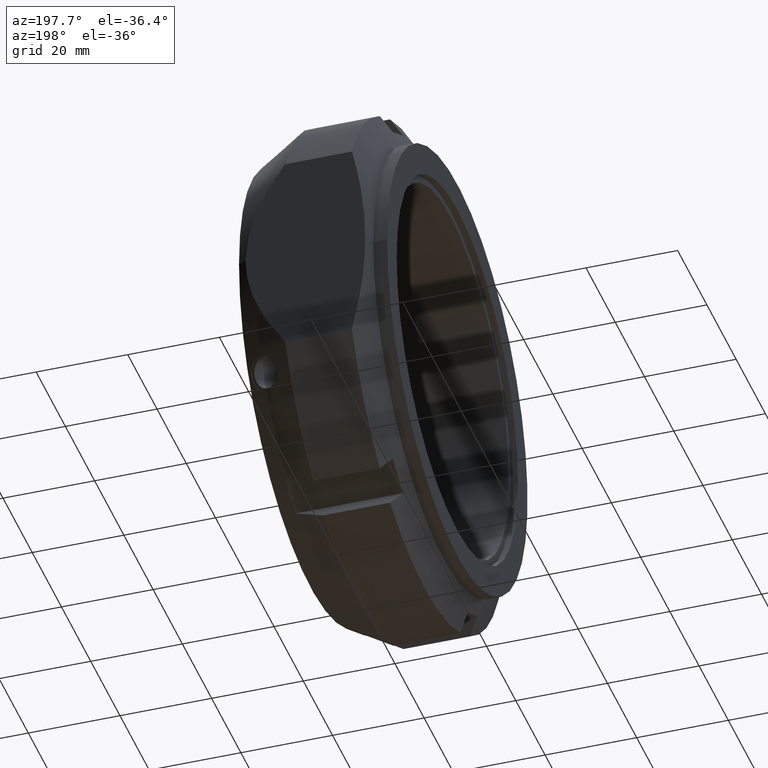
[diagram: clean part render]
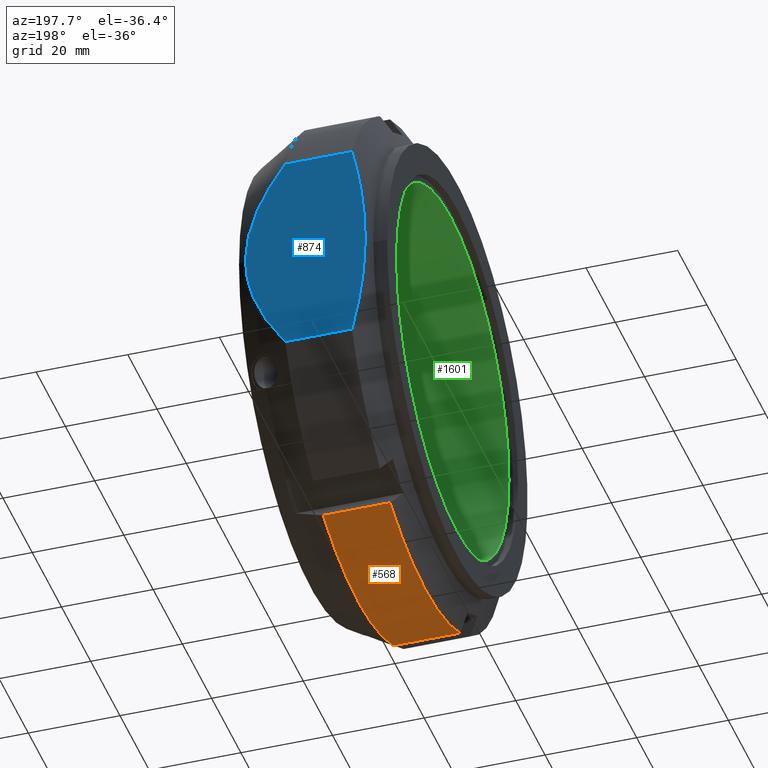
[diagram: same view with three faces highlighted in distinct colors, each labeled with its STEP entity id]
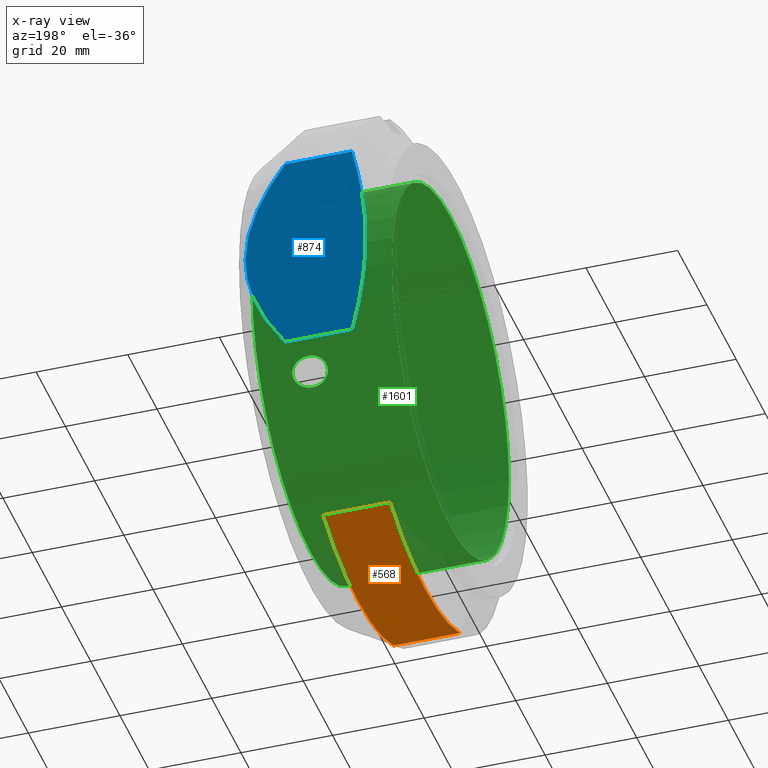
[diagram: x-ray of the same camera — body ghosted, the three highlighted faces saturated]
A machine part, auxiliary view with three faces highlighted in distinct colors.
The next image is the same camera in x-ray (body ghosted, the three faces saturated) — at least one of them is partly hidden behind the body in this view.
Their STEP definitions:

[orange] entity #568 — the highlighted cylindrical surface (partial cylindrical patch) has radius 55 mm, axis along (1, 0, 0).
#127=CARTESIAN_POINT('',(7.041451884327358,23.963074688667184,-49.505262866339351));
#128=VERTEX_POINT('',#127);
#143=CARTESIAN_POINT('',(21.6076951545867,23.963074688667184,-49.505262866339351));
#144=VERTEX_POINT('',#143);
#158=CARTESIAN_POINT('',(7.041451884327358,23.963074688667184,-49.505262866339351));
#159=DIRECTION('',(1.0,0.0,0.0));
#160=VECTOR('',#159,14.566243270259342);
#161=LINE('',#158,#160);
#162=EDGE_CURVE('',#128,#144,#161,.T.);
#271=CARTESIAN_POINT('',(7.041451884327348,-23.963074688667266,-49.505262866339301));
#272=VERTEX_POINT('',#271);
#288=CARTESIAN_POINT('',(21.607695154586732,-23.963074688667263,-49.505262866339301));
#289=VERTEX_POINT('',#288);
#290=CARTESIAN_POINT('',(21.607695154586732,-23.96307468866727,-49.505262866339308));
#291=DIRECTION('',(-1.0,0.0,0.0));
#292=VECTOR('',#291,14.566243270259385);
#293=LINE('',#290,#292);
#294=EDGE_CURVE('',#289,#272,#293,.T.);
#375=CARTESIAN_POINT('',(7.041451884327357,0.0,0.0));
#376=DIRECTION('',(1.0,0.0,0.0));
#377=DIRECTION('',(0.0,1.0,0.0));
#378=AXIS2_PLACEMENT_3D('',#375,#376,#377);
#379=CIRCLE('',#378,55.0);
#380=EDGE_CURVE('',#272,#128,#379,.T.);
#551=CARTESIAN_POINT('',(14.324573519457031,0.0,0.0));
#552=DIRECTION('',(1.0,0.0,0.0));
#553=DIRECTION('',(0.0,1.0,0.0));
#554=AXIS2_PLACEMENT_3D('',#551,#552,#553);
#555=CYLINDRICAL_SURFACE('',#554,55.0);
#556=ORIENTED_EDGE('',*,*,#162,.T.);
#557=CARTESIAN_POINT('',(21.607695154586708,0.0,0.0));
#558=DIRECTION('',(1.0,0.0,0.0));
#559=DIRECTION('',(0.0,1.0,0.0));
#560=AXIS2_PLACEMENT_3D('',#557,#558,#559);
#561=CIRCLE('',#560,55.0);
#562=EDGE_CURVE('',#289,#144,#561,.T.);
#563=ORIENTED_EDGE('',*,*,#562,.F.);
#564=ORIENTED_EDGE('',*,*,#294,.T.);
#565=ORIENTED_EDGE('',*,*,#380,.T.);
#566=EDGE_LOOP('',(#556,#563,#564,#565));
#567=FACE_OUTER_BOUND('',#566,.T.);
#568=ADVANCED_FACE('',(#567),#555,.T.);

[blue] entity #874 — the highlighted planar face has unit normal (0, -1, 0).
#517=CARTESIAN_POINT('',(7.041451884327357,50.000000000000043,22.912878474779106));
#518=VERTEX_POINT('',#517);
#526=CARTESIAN_POINT('',(7.041451884327357,50.000000000000028,-22.912878474779141));
#527=VERTEX_POINT('',#526);
#528=CARTESIAN_POINT('',(7.041451884327358,50.000000000000043,22.912878474779113));
#529=CARTESIAN_POINT('',(1.530381132971882,50.000000000000036,3.541307E-015));
#530=CARTESIAN_POINT('',(7.041451884327358,50.000000000000028,-22.912878474779149));
#538=(BOUNDED_CURVE()B_SPLINE_CURVE(2,(#528,#529,#530),.UNSPECIFIED.,.F.,.U.)B_SPLINE_CURVE_WITH_KNOTS((3,3),(0.0,4.618802153516993),.UNSPECIFIED.)CURVE()GEOMETRIC_REPRESENTATION_ITEM()RATIONAL_B_SPLINE_CURVE((1.0,1.099999999999999,1.0))REPRESENTATION_ITEM(''));
#539=EDGE_CURVE('',#518,#527,#538,.T.);
#800=CARTESIAN_POINT('',(21.607695154586708,50.000000000000043,22.912878474779106));
#801=VERTEX_POINT('',#800);
#809=CARTESIAN_POINT('',(21.607695154586708,50.000000000000043,22.912878474779106));
#810=DIRECTION('',(-1.0,0.0,0.0));
#811=VECTOR('',#810,14.566243270259351);
#812=LINE('',#809,#811);
#813=EDGE_CURVE('',#801,#518,#812,.T.);
#844=CARTESIAN_POINT('',(0.0,50.000000000000078,100.00000000000001));
#845=DIRECTION('',(0.0,-1.0,0.0));
#846=DIRECTION('',(0.0,0.0,-1.0));
#847=AXIS2_PLACEMENT_3D('',#844,#845,#846);
#848=PLANE('',#847);
#849=ORIENTED_EDGE('',*,*,#539,.F.);
#850=ORIENTED_EDGE('',*,*,#813,.F.);
#851=CARTESIAN_POINT('',(21.607695154586708,50.000000000000028,-22.912878474779141));
#852=VERTEX_POINT('',#851);
#853=CARTESIAN_POINT('',(21.607695154586708,50.000000000000028,-22.912878474779138));
#854=CARTESIAN_POINT('',(38.140907408653185,50.000000000000036,-9.779716E-015));
#855=CARTESIAN_POINT('',(21.607695154586711,50.000000000000043,22.912878474779102));
#863=(BOUNDED_CURVE()B_SPLINE_CURVE(2,(#853,#854,#855),.UNSPECIFIED.,.F.,.U.)B_SPLINE_CURVE_WITH_KNOTS((3,3),(0.0,4.898979485566338),.UNSPECIFIED.)CURVE()GEOMETRIC_REPRESENTATION_ITEM()RATIONAL_B_SPLINE_CURVE((1.0,1.099999999999999,1.0))REPRESENTATION_ITEM(''));
#864=EDGE_CURVE('',#852,#801,#863,.T.);
#865=ORIENTED_EDGE('',*,*,#864,.F.);
#866=CARTESIAN_POINT('',(7.041451884327357,50.000000000000028,-22.912878474779141));
#867=DIRECTION('',(1.0,0.0,0.0));
#868=VECTOR('',#867,14.566243270259351);
#869=LINE('',#866,#868);
#870=EDGE_CURVE('',#527,#852,#869,.T.);
#871=ORIENTED_EDGE('',*,*,#870,.F.);
#872=EDGE_LOOP('',(#849,#850,#865,#871));
#873=FACE_OUTER_BOUND('',#872,.T.);
#874=ADVANCED_FACE('',(#873),#848,.F.);

[green] entity #1601 — the highlighted cylindrical surface (bore or boss wall) has radius 40 mm, axis along (1, 0, 0).
#1191=CARTESIAN_POINT('',(21.014157582887997,36.182986374331946,-17.052609684001695));
#1192=VERTEX_POINT('',#1191);
#1193=CARTESIAN_POINT('',(21.014157582887997,36.182986374331946,-17.052609684001695));
#1194=CARTESIAN_POINT('',(21.508219076813049,36.182986374331946,-17.052609684001695));
#1195=CARTESIAN_POINT('',(22.038930494380327,36.146056527267469,-17.13170344394506));
#1196=CARTESIAN_POINT('',(23.029136020147934,35.989768185182193,-17.457641635930877));
#1197=CARTESIAN_POINT('',(23.488664435652517,35.870156446173326,-17.70426032139056));
#1198=CARTESIAN_POINT('',(24.165679366390016,35.596614698758792,-18.24714235285964));
#1199=CARTESIAN_POINT('',(24.448231932047726,35.434557554124801,-18.562010051009189));
#1200=CARTESIAN_POINT('',(24.831671122661902,35.061008473536234,-19.25829098480602));
#1201=CARTESIAN_POINT('',(24.931658006888494,34.84892913832946,-19.639884143045879));
#1202=CARTESIAN_POINT('',(24.931658006888494,34.43310316442561,-20.360115856954163));
#1203=CARTESIAN_POINT('',(24.831671122661902,34.208673463082938,-20.734578527980872));
#1204=CARTESIAN_POINT('',(24.448231932047726,33.792451026538409,-21.406221988229301));
#1205=CARTESIAN_POINT('',(24.165679366390012,33.600796173426772,-21.704001441421887));
#1206=CARTESIAN_POINT('',(23.488664435652503,33.267417416623715,-22.212336559412996));
#1207=CARTESIAN_POINT('',(23.029136020147934,33.113645239472127,-22.439232706715355));
#1208=CARTESIAN_POINT('',(22.038930494380324,32.909518656191487,-22.737551477269466));
#1209=CARTESIAN_POINT('',(21.508219076813042,32.859486374331944,-22.809080542956863));
#1210=CARTESIAN_POINT('',(20.536085212414996,32.859486374331944,-22.809080542956863));
#1211=CARTESIAN_POINT('',(20.021651853894923,32.906589782701431,-22.741756250594779));
#1212=CARTESIAN_POINT('',(19.066773610044837,33.105924909924141,-22.450587171227149));
#1213=CARTESIAN_POINT('',(18.626468635992694,33.258098489086748,-22.226243980758209));
#1214=CARTESIAN_POINT('',(17.976196794589001,33.593042588934409,-21.71606905717233));
#1215=CARTESIAN_POINT('',(17.70725324397478,33.788282679599313,-21.412878747771202));
#1216=CARTESIAN_POINT('',(17.347259767394473,34.208991738703631,-20.734133859079172));
#1217=CARTESIAN_POINT('',(17.256363528281604,34.434148908055462,-20.35830457585557));
#1218=CARTESIAN_POINT('',(17.256363528281604,34.85501021066159,-19.62935141680213));
#1219=CARTESIAN_POINT('',(17.35355418968344,35.074379900662677,-19.234229680531435));
#1220=CARTESIAN_POINT('',(17.736135032452079,35.46083826508471,-18.512068128795747));
#1221=CARTESIAN_POINT('',(18.021393592979059,35.628361798292367,-18.185191375816228));
#1222=CARTESIAN_POINT('',(18.686341721709692,35.894781803296723,-17.653900424238984));
#1223=CARTESIAN_POINT('',(19.118435082359674,36.006365904436294,-17.423242214546192));
#1224=CARTESIAN_POINT('',(20.050481047703997,36.150248153207372,-17.12271337704599));
#1225=CARTESIAN_POINT('',(20.550290495608905,36.182986374331946,-17.052609684001695));
#1226=CARTESIAN_POINT('',(21.014157582887997,36.182986374331946,-17.052609684001695));
#1227=B_SPLINE_CURVE_WITH_KNOTS('',3,(#1193,#1194,#1195,#1196,#1197,#1198,#1199,#1200,#1201,#1202,#1203,#1204,#1205,#1206,#1207,#1208,#1209,#1210,#1211,#1212,#1213,#1214,#1215,#1216,#1217,#1218,#1219,#1220,#1221,#1222,#1223,#1224,#1225,#1226),.UNSPECIFIED.,.T.,.U.,(4,2,2,2,2,2,2,2,2,2,2,2,2,2,2,2,4),(0.0,0.148218448177516,0.296436896355031,0.421184688526187,0.545932480697343,0.670680272868499,0.795428065039655,0.943646513217171,1.091864961394687,1.235286672536587,1.378708383678487,1.502828729671732,1.626949075664977,1.755345511235409,1.88374194680584,2.022902072989568,2.162062199173295),.UNSPECIFIED.);
#1228=EDGE_CURVE('',#1192,#1192,#1227,.T.);
#1296=CARTESIAN_POINT('',(21.014157582887986,-32.859486374331965,-22.809080542956831));
#1297=VERTEX_POINT('',#1296);
#1298=CARTESIAN_POINT('',(21.014157582887986,-32.859486374331965,-22.809080542956831));
#1299=CARTESIAN_POINT('',(21.508219076813042,-32.859486374331965,-22.809080542956831));
#1300=CARTESIAN_POINT('',(22.038930494380327,-32.909518656191509,-22.737551477269442));
#1301=CARTESIAN_POINT('',(23.029136020147938,-33.113645239472149,-22.43923270671533));
#1302=CARTESIAN_POINT('',(23.488664435652513,-33.267417416623736,-22.212336559412972));
#1303=CARTESIAN_POINT('',(24.165679366390016,-33.600796173426801,-21.704001441421859));
#1304=CARTESIAN_POINT('',(24.448231932047726,-33.79245102653843,-21.406221988229277));
#1305=CARTESIAN_POINT('',(24.831671122661902,-34.20867346308296,-20.734578527980844));
#1306=CARTESIAN_POINT('',(24.931658006888494,-34.433103164425624,-20.360115856954131));
#1307=CARTESIAN_POINT('',(24.931658006888494,-34.848929138329481,-19.639884143045851));
#1308=CARTESIAN_POINT('',(24.831671122661895,-35.061008473536248,-19.258290984805996));
#1309=CARTESIAN_POINT('',(24.448231932047726,-35.434557554124815,-18.56201005100916));
#1310=CARTESIAN_POINT('',(24.165679366390016,-35.596614698758806,-18.247142352859612));
#1311=CARTESIAN_POINT('',(23.488664435652513,-35.87015644617334,-17.704260321390528));
#1312=CARTESIAN_POINT('',(23.029136020147931,-35.989768185182207,-17.457641635930841));
#1313=CARTESIAN_POINT('',(22.038930494380317,-36.146056527267483,-17.131703443945025));
#1314=CARTESIAN_POINT('',(21.508219076813045,-36.182986374331961,-17.052609684001666));
#1315=CARTESIAN_POINT('',(20.550290495608902,-36.182986374331961,-17.052609684001666));
#1316=CARTESIAN_POINT('',(20.050481047703997,-36.150248153207386,-17.122713377045958));
#1317=CARTESIAN_POINT('',(19.118435082359682,-36.006365904436322,-17.423242214546157));
#1318=CARTESIAN_POINT('',(18.686341721709699,-35.894781803296752,-17.653900424238952));
#1319=CARTESIAN_POINT('',(18.021393592979067,-35.628361798292396,-18.185191375816196));
#1320=CARTESIAN_POINT('',(17.736135032452086,-35.460838265084732,-18.512068128795708));
#1321=CARTESIAN_POINT('',(17.35355418968344,-35.074379900662699,-19.234229680531399));
#1322=CARTESIAN_POINT('',(17.256363528281604,-34.855010210661604,-19.629351416802105));
#1323=CARTESIAN_POINT('',(17.256363528281604,-34.434148908055477,-20.358304575855541));
#1324=CARTESIAN_POINT('',(17.347259767394469,-34.208991738703645,-20.734133859079144));
#1325=CARTESIAN_POINT('',(17.70725324397478,-33.788282679599327,-21.412878747771174));
#1326=CARTESIAN_POINT('',(17.976196794589001,-33.593042588934424,-21.716069057172295));
#1327=CARTESIAN_POINT('',(18.626468635992694,-33.258098489086763,-22.226243980758174));
#1328=CARTESIAN_POINT('',(19.066773610044837,-33.10592490992417,-22.450587171227127));
#1329=CARTESIAN_POINT('',(20.02165185389493,-32.906589782701452,-22.741756250594758));
#1330=CARTESIAN_POINT('',(20.536085212414989,-32.859486374331965,-22.809080542956831));
#1331=CARTESIAN_POINT('',(21.014157582887989,-32.859486374331965,-22.809080542956831));
#1332=B_SPLINE_CURVE_WITH_KNOTS('',3,(#1298,#1299,#1300,#1301,#1302,#1303,#1304,#1305,#1306,#1307,#1308,#1309,#1310,#1311,#1312,#1313,#1314,#1315,#1316,#1317,#1318,#1319,#1320,#1321,#1322,#1323,#1324,#1325,#1326,#1327,#1328,#1329,#1330,#1331),.UNSPECIFIED.,.T.,.U.,(4,2,2,2,2,2,2,2,2,2,2,2,2,2,2,2,4),(0.0,0.148218448177516,0.296436896355032,0.421184688526188,0.545932480697343,0.670680272868499,0.795428065039655,0.943646513217171,1.091864961394687,1.231025087578414,1.370185213762141,1.498581649332573,1.626978084903004,1.751098430896249,1.875218776889494,2.018640488031394,2.162062199173295),.UNSPECIFIED.);
#1333=EDGE_CURVE('',#1297,#1297,#1332,.T.);
#1369=CARTESIAN_POINT('',(21.014157582887986,-3.323500000000001,39.861690226958515));
#1370=VERTEX_POINT('',#1369);
#1371=CARTESIAN_POINT('',(21.014157582887986,-3.323500000000001,39.861690226958515));
#1372=CARTESIAN_POINT('',(21.488658356557142,-3.323500000000001,39.861690226958515));
#1373=CARTESIAN_POINT('',(21.999314667833584,-3.243209053762726,39.868655175637301));
#1374=CARTESIAN_POINT('',(22.957433860708715,-2.909116106376214,39.894424598929575));
#1375=CARTESIAN_POINT('',(23.404905054005066,-2.655315723674909,39.912940213255951));
#1376=CARTESIAN_POINT('',(24.100814199478897,-2.069868503674064,39.94739577066678));
#1377=CARTESIAN_POINT('',(24.406233010182049,-1.707503479949296,39.965628241808851));
#1378=CARTESIAN_POINT('',(24.82212294992879,-0.890599160873103,39.992172269884513));
#1379=CARTESIAN_POINT('',(24.931658006888497,-0.43556799933502,40.0));
#1380=CARTESIAN_POINT('',(24.931658006888497,0.415825973903852,40.0));
#1381=CARTESIAN_POINT('',(24.831671122661906,0.852335010453297,39.992869512786854));
#1382=CARTESIAN_POINT('',(24.448231932047729,1.642106527586384,39.968232039238451));
#1383=CARTESIAN_POINT('',(24.165679366390016,1.995818525332015,39.951143794281485));
#1384=CARTESIAN_POINT('',(23.488664435652513,2.60273902954961,39.916596880803525));
#1385=CARTESIAN_POINT('',(23.029136020147931,2.876122945710058,39.896874342646186));
#1386=CARTESIAN_POINT('',(22.038930494380317,3.236537871075982,39.869254921214484));
#1387=CARTESIAN_POINT('',(21.508219076813045,3.323500000000002,39.861690226958515));
#1388=CARTESIAN_POINT('',(20.536085212414996,3.3235,39.861690226958515));
#1389=CARTESIAN_POINT('',(20.02165185389493,3.24164374833789,39.868820829030284));
#1390=CARTESIAN_POINT('',(19.066773610044841,2.889816365197635,39.895865573387944));
#1391=CARTESIAN_POINT('',(18.626468635992698,2.619442673504182,39.915480163493086));
#1392=CARTESIAN_POINT('',(17.976196794589004,2.010146179381192,39.950462801015931));
#1393=CARTESIAN_POINT('',(17.70725324397478,1.649955623926109,39.967950524668353));
#1394=CARTESIAN_POINT('',(17.347259767394469,0.851790778077809,39.992922813108926));
#1395=CARTESIAN_POINT('',(17.256363528281607,0.413734486644151,40.0));
#1396=CARTESIAN_POINT('',(17.256363528281607,-0.413734486644149,40.0));
#1397=CARTESIAN_POINT('',(17.347259767394469,-0.851790778077808,39.992922813108926));
#1398=CARTESIAN_POINT('',(17.70725324397478,-1.649955623926108,39.967950524668353));
#1399=CARTESIAN_POINT('',(17.976196794589004,-2.010146179381191,39.950462801015931));
#1400=CARTESIAN_POINT('',(18.626468635992694,-2.61944267350418,39.915480163493079));
#1401=CARTESIAN_POINT('',(19.066773610044841,-2.889816365197635,39.895865573387944));
#1402=CARTESIAN_POINT('',(20.02165185389493,-3.241643748337892,39.868820829030284));
#1403=CARTESIAN_POINT('',(20.536085212414996,-3.323500000000001,39.861690226958515));
#1404=CARTESIAN_POINT('',(21.014157582887989,-3.323500000000001,39.861690226958515));
#1405=B_SPLINE_CURVE_WITH_KNOTS('',3,(#1371,#1372,#1373,#1374,#1375,#1376,#1377,#1378,#1379,#1380,#1381,#1382,#1383,#1384,#1385,#1386,#1387,#1388,#1389,#1390,#1391,#1392,#1393,#1394,#1395,#1396,#1397,#1398,#1399,#1400,#1401,#1402,#1403,#1404),.UNSPECIFIED.,.T.,.U.,(4,2,2,2,2,2,2,2,2,2,2,2,2,2,2,2,4),(0.0,0.142350232100747,0.284700464201494,0.415370864002,0.546041263802505,0.670789055973661,0.795536848144817,0.943755296322333,1.091973744499849,1.235395455641749,1.378817166783649,1.502937512776894,1.627057858770139,1.751178204763384,1.875298550756629,2.018720261898529,2.162141973040429),.UNSPECIFIED.);
#1406=EDGE_CURVE('',#1370,#1370,#1405,.T.);
#1485=CARTESIAN_POINT('',(1.499999999999988,40.0,0.0));
#1486=VERTEX_POINT('',#1485);
#1487=CARTESIAN_POINT('',(1.499999999999988,0.0,0.0));
#1488=DIRECTION('',(1.0,0.0,0.0));
#1489=DIRECTION('',(0.0,1.0,0.0));
#1490=AXIS2_PLACEMENT_3D('',#1487,#1488,#1489);
#1491=CIRCLE('',#1490,40.0);
#1492=EDGE_CURVE('',#1486,#1486,#1491,.T.);
#1569=CARTESIAN_POINT('',(31.999999999999989,40.0,0.0));
#1570=VERTEX_POINT('',#1569);
#1571=CARTESIAN_POINT('',(31.999999999999989,0.0,0.0));
#1572=DIRECTION('',(1.0,0.0,0.0));
#1573=DIRECTION('',(0.0,1.0,0.0));
#1574=AXIS2_PLACEMENT_3D('',#1571,#1572,#1573);
#1575=CIRCLE('',#1574,40.0);
#1576=EDGE_CURVE('',#1570,#1570,#1575,.T.);
#1581=CARTESIAN_POINT('',(16.749999999999989,0.0,0.0));
#1582=DIRECTION('',(1.0,0.0,0.0));
#1583=DIRECTION('',(0.0,1.0,0.0));
#1584=AXIS2_PLACEMENT_3D('',#1581,#1582,#1583);
#1585=CYLINDRICAL_SURFACE('',#1584,40.0);
#1586=ORIENTED_EDGE('',*,*,#1492,.F.);
#1587=EDGE_LOOP('',(#1586));
#1588=FACE_OUTER_BOUND('',#1587,.T.);
#1589=ORIENTED_EDGE('',*,*,#1228,.T.);
#1590=EDGE_LOOP('',(#1589));
#1591=FACE_BOUND('',#1590,.T.);
#1592=ORIENTED_EDGE('',*,*,#1333,.T.);
#1593=EDGE_LOOP('',(#1592));
#1594=FACE_BOUND('',#1593,.T.);
#1595=ORIENTED_EDGE('',*,*,#1406,.T.);
#1596=EDGE_LOOP('',(#1595));
#1597=FACE_BOUND('',#1596,.T.);
#1598=ORIENTED_EDGE('',*,*,#1576,.T.);
#1599=EDGE_LOOP('',(#1598));
#1600=FACE_BOUND('',#1599,.T.);
#1601=ADVANCED_FACE('',(#1588,#1591,#1594,#1597,#1600),#1585,.F.);